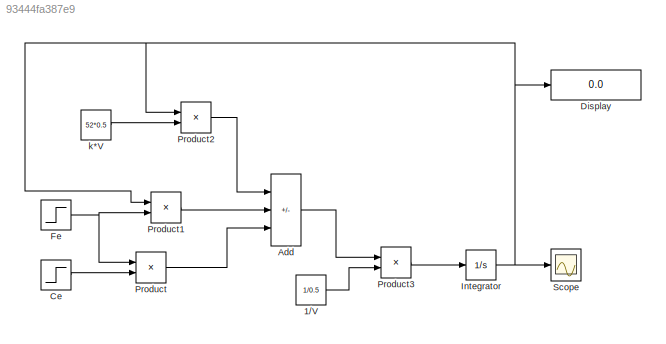
MODEL slx_93444fa387e9
KIND model
CONFIG AbsTol = auto
CONFIG EnableMultiTasking = off
CONFIG FixedStep = auto
CONFIG MaxStep = auto
CONFIG MinStep = auto
CONFIG RelTol = 1e-3
CONFIG SampleTimeConstraint = Unconstrained
CONFIG SolverName = VariableStepAuto
CONFIG StartTime = 0.0
CONFIG StopTime = 0.1
BLOCK [Constant] 1//V
  Value = 1/0.5
BLOCK [Sum] Add
  IconShape = rectangular
  Inputs = --+
  Ports = [3, 1]
BLOCK [Step] Ce
  After = 12*0.8
  Before = 12
  SampleTime = 0
  Time = 0.05
BLOCK [Display] Display
  Decimation = 1
  Ports = [1]
BLOCK [Step] Fe
  After = 100*1.2
  Before = 100
  SampleTime = 0
  Time = 0
BLOCK [Integrator] Integrator
  InitialCondition = 9.523
  Ports = [1, 1]
BLOCK [Product] Product
  Ports = [2, 1]
BLOCK [Product] Product1
  Ports = [2, 1]
BLOCK [Product] Product2
  Ports = [2, 1]
BLOCK [Product] Product3
  Ports = [2, 1]
BLOCK [Scope] Scope
  Floating = off
  NumInputPorts = 1
  Ports = [1]
  ScopeSpecificationString = Simulink.scopes.TimeScopeBlockCfg('CurrentConfiguration', extmgr.ConfigurationSet(extmgr.Configuration('Core','General UI',true),extmgr.Configuration('Core','Source UI',true),extmgr.Configuration('Sources','WiredSimulink',true),extmgr.Configuration('Visuals','Time Domain',true,'SerializedDisplays',{struct('MinYLimReal','6','MaxYLimReal','10.5','YLabelReal','','MinYLimMag','9.51221','MaxYLimMag','9...<+1382ch>
BLOCK [Constant] k*V
  Value = 52*0.5
LINE 1//V:1 -> Product3:2
LINE Add:1 -> Product3:1
LINE Ce:1 -> Product:2
NET Fe:1 -> Product1:2, Product:1
NET Integrator:1 -> Display:1, Product1:1, Product2:1, Scope:1
LINE Product1:1 -> Add:2
LINE Product2:1 -> Add:1
LINE Product3:1 -> Integrator:1
LINE Product:1 -> Add:3
LINE k*V:1 -> Product2:2
note: NET lines group one-source signal fan-out (src -> all destinations, sorted); 1:1 wires keep LINE
